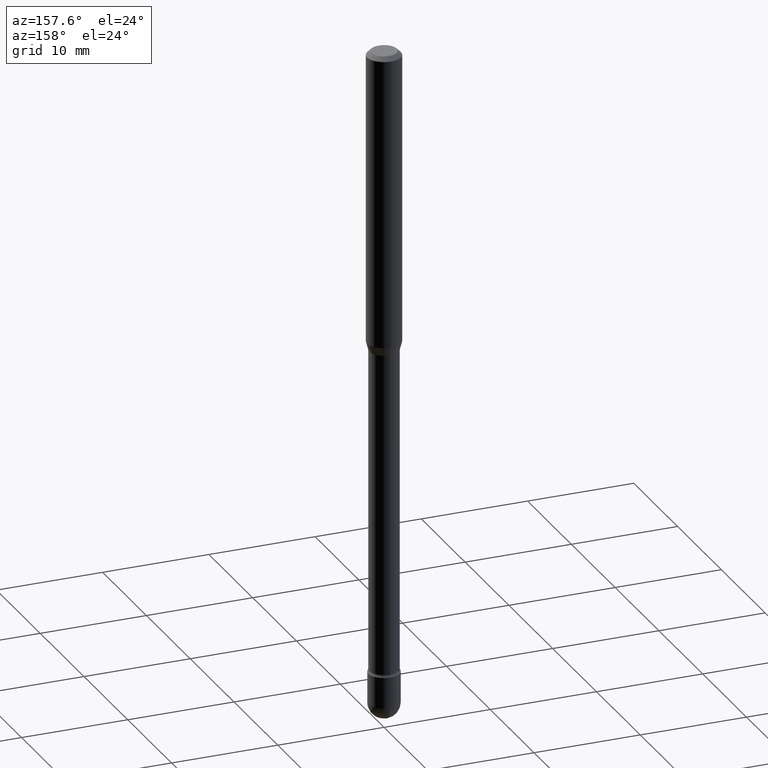
[diagram: clean part render]
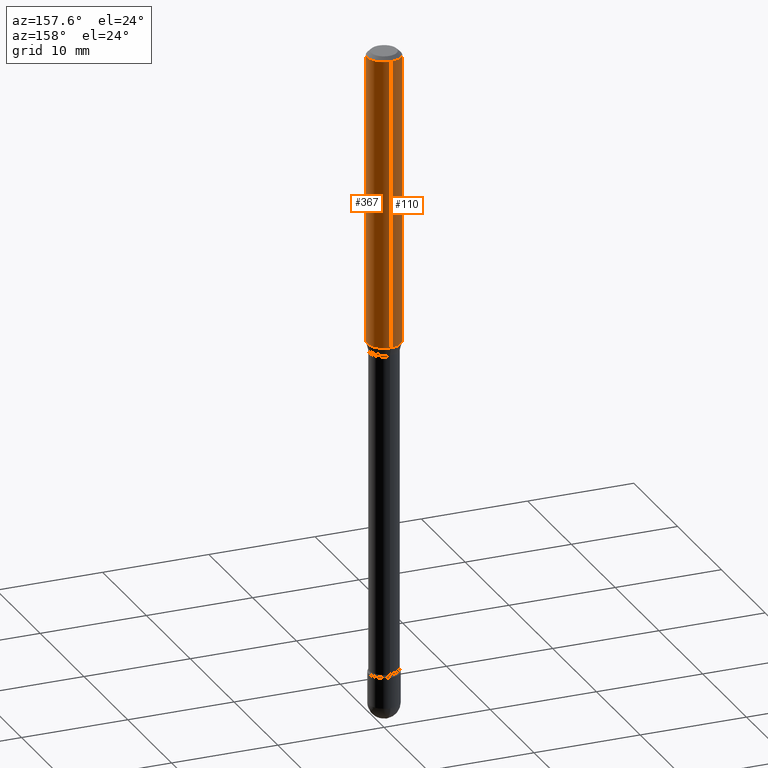
[diagram: same view with one multi-face feature highlighted, each face labeled with its STEP entity id]
A machine part, auxiliary view. The highlighted faces form ONE feature: a constant-radius fillet chain: 2 tangent blend faces with common blend radius 1.5875 mm. The faces share edges in the B-rep.
Their STEP definitions:
[1] entity #110 (Cylinder):
#9 = EDGE_CURVE ( 'NONE', #376, #514, #35, .T. ) ;
#16 = ORIENTED_EDGE ( 'NONE', *, *, #229, .T. ) ;
#27 = ORIENTED_EDGE ( 'NONE', *, *, #141, .F. ) ;
#35 = CIRCLE ( 'NONE', #103, 0.06250000000000000000 ) ;
#69 = CARTESIAN_POINT ( 'NONE',  ( -4.364351673553916201E-16, -0.06250000000000000000, 6.962883749662878485E-16 ) ) ;
#72 = VERTEX_POINT ( 'NONE', #219 ) ;
#85 = DIRECTION ( 'NONE',  ( -2.445497940252363543E-29, 3.491439617200668170E-15, 1.000000000000000000 ) ) ;
#96 = DIRECTION ( 'NONE',  ( -2.445497940252363824E-29, 3.491439617200667775E-15, 1.000000000000000000 ) ) ;
#103 = AXIS2_PLACEMENT_3D ( 'NONE', #107, #213, #196 ) ;
#107 = CARTESIAN_POINT ( 'NONE',  ( 3.668246910378565599E-31, -5.237159425801031048E-17, -0.01500000000000008271 ) ) ;
#110 = ADVANCED_FACE ( 'NONE', ( #355 ), #129, .T. ) ;
#119 = ORIENTED_EDGE ( 'NONE', *, *, #329, .T. ) ;
#129 = CYLINDRICAL_SURFACE ( 'NONE', #276, 0.06250000000000000000 ) ;
#138 = CARTESIAN_POINT ( 'NONE',  ( 2.661836887426760924E-29, -3.800306927401807110E-15, -1.088464170676043397 ) ) ;
#141 = EDGE_CURVE ( 'NONE', #72, #376, #306, .T. ) ;
#186 = DIRECTION ( 'NONE',  ( -2.445497940252363543E-29, 3.491439617200668170E-15, 1.000000000000000000 ) ) ;
#196 = DIRECTION ( 'NONE',  ( -6.982962677686265922E-15, -1.000000000000000000, 3.483106191921935554E-15 ) ) ;
#213 = DIRECTION ( 'NONE',  ( -2.445497940252363543E-29, 3.491439617200668170E-15, 1.000000000000000000 ) ) ;
#219 = CARTESIAN_POINT ( 'NONE',  ( 4.440892098500890430E-16, 0.06249999999999618361, -1.088464170676043619 ) ) ;
#222 = AXIS2_PLACEMENT_3D ( 'NONE', #138, #186, #322 ) ;
#229 = EDGE_CURVE ( 'NONE', #72, #243, #268, .T. ) ;
#243 = VERTEX_POINT ( 'NONE', #497 ) ;
#247 = DIRECTION ( 'NONE',  ( -2.445497940252363824E-29, 3.491439617200667775E-15, 1.000000000000000000 ) ) ;
#261 = CARTESIAN_POINT ( 'NONE',  ( -4.364351673553912750E-16, -0.06250000000000005551, -0.01499999999999986587 ) ) ;
#268 = CIRCLE ( 'NONE', #222, 0.06250000000000000000 ) ;
#276 = AXIS2_PLACEMENT_3D ( 'NONE', #480, #85, #359 ) ;
#306 = LINE ( 'NONE', #375, #483 ) ;
#322 = DIRECTION ( 'NONE',  ( -6.982962677686265922E-15, -1.000000000000000000, 4.370956789862821150E-15 ) ) ;
#329 = EDGE_CURVE ( 'NONE', #243, #514, #467, .T. ) ;
#355 = FACE_OUTER_BOUND ( 'NONE', #557, .T. ) ;
#359 = DIRECTION ( 'NONE',  ( -6.982962677686265922E-15, -1.000000000000000000, 3.491439617200668564E-15 ) ) ;
#375 = CARTESIAN_POINT ( 'NONE',  ( 4.440892098500625669E-16, 0.06250000000000000000, 2.598584228162043273E-16 ) ) ;
#376 = VERTEX_POINT ( 'NONE', #396 ) ;
#396 = CARTESIAN_POINT ( 'NONE',  ( 4.440892098500893388E-16, 0.06249999999999993755, -0.01500000000000030129 ) ) ;
#467 = LINE ( 'NONE', #69, #511 ) ;
#480 = CARTESIAN_POINT ( 'NONE',  ( -1.169113584055446105E-44, 1.669184350826100908E-30, 4.780733988912460139E-16 ) ) ;
#483 = VECTOR ( 'NONE', #96, 39.37007874015748143 ) ;
#497 = CARTESIAN_POINT ( 'NONE',  ( -4.364351673553650454E-16, -0.06250000000000381639, -1.088464170676042952 ) ) ;
#502 = ORIENTED_EDGE ( 'NONE', *, *, #9, .F. ) ;
#511 = VECTOR ( 'NONE', #247, 39.37007874015748143 ) ;
#514 = VERTEX_POINT ( 'NONE', #261 ) ;
#557 = EDGE_LOOP ( 'NONE', ( #27, #16, #119, #502 ) ) ;
[2] entity #367 (Cylinder):
#22 = ORIENTED_EDGE ( 'NONE', *, *, #141, .T. ) ;
#47 = AXIS2_PLACEMENT_3D ( 'NONE', #335, #513, #194 ) ;
#50 = CARTESIAN_POINT ( 'NONE',  ( 3.668246910378565599E-31, -5.237159425801031048E-17, -0.01500000000000008271 ) ) ;
#69 = CARTESIAN_POINT ( 'NONE',  ( -4.364351673553916201E-16, -0.06250000000000000000, 6.962883749662878485E-16 ) ) ;
#72 = VERTEX_POINT ( 'NONE', #219 ) ;
#96 = DIRECTION ( 'NONE',  ( -2.445497940252363824E-29, 3.491439617200667775E-15, 1.000000000000000000 ) ) ;
#98 = DIRECTION ( 'NONE',  ( -2.445497940252363543E-29, 3.491439617200668170E-15, 1.000000000000000000 ) ) ;
#141 = EDGE_CURVE ( 'NONE', #72, #376, #306, .T. ) ;
#146 = DIRECTION ( 'NONE',  ( -6.982962677686265922E-15, -1.000000000000000000, 4.370956789862821150E-15 ) ) ;
#148 = EDGE_CURVE ( 'NONE', #514, #376, #192, .T. ) ;
#150 = CYLINDRICAL_SURFACE ( 'NONE', #47, 0.06250000000000000000 ) ;
#192 = CIRCLE ( 'NONE', #337, 0.06250000000000000000 ) ;
#194 = DIRECTION ( 'NONE',  ( -6.982962677686265922E-15, -1.000000000000000000, 3.491439617200668564E-15 ) ) ;
#201 = FACE_OUTER_BOUND ( 'NONE', #237, .T. ) ;
#202 = ORIENTED_EDGE ( 'NONE', *, *, #148, .F. ) ;
#219 = CARTESIAN_POINT ( 'NONE',  ( 4.440892098500890430E-16, 0.06249999999999618361, -1.088464170676043619 ) ) ;
#237 = EDGE_LOOP ( 'NONE', ( #427, #22, #202, #299 ) ) ;
#243 = VERTEX_POINT ( 'NONE', #497 ) ;
#247 = DIRECTION ( 'NONE',  ( -2.445497940252363824E-29, 3.491439617200667775E-15, 1.000000000000000000 ) ) ;
#260 = AXIS2_PLACEMENT_3D ( 'NONE', #429, #519, #146 ) ;
#261 = CARTESIAN_POINT ( 'NONE',  ( -4.364351673553912750E-16, -0.06250000000000005551, -0.01499999999999986587 ) ) ;
#299 = ORIENTED_EDGE ( 'NONE', *, *, #329, .F. ) ;
#306 = LINE ( 'NONE', #375, #483 ) ;
#329 = EDGE_CURVE ( 'NONE', #243, #514, #467, .T. ) ;
#335 = CARTESIAN_POINT ( 'NONE',  ( -1.169113584055446105E-44, 1.669184350826100908E-30, 4.780733988912460139E-16 ) ) ;
#337 = AXIS2_PLACEMENT_3D ( 'NONE', #50, #98, #412 ) ;
#348 = EDGE_CURVE ( 'NONE', #243, #72, #565, .T. ) ;
#367 = ADVANCED_FACE ( 'NONE', ( #201 ), #150, .T. ) ;
#375 = CARTESIAN_POINT ( 'NONE',  ( 4.440892098500625669E-16, 0.06250000000000000000, 2.598584228162043273E-16 ) ) ;
#376 = VERTEX_POINT ( 'NONE', #396 ) ;
#396 = CARTESIAN_POINT ( 'NONE',  ( 4.440892098500893388E-16, 0.06249999999999993755, -0.01500000000000030129 ) ) ;
#412 = DIRECTION ( 'NONE',  ( -6.982962677686265922E-15, -1.000000000000000000, 3.483106191921935554E-15 ) ) ;
#427 = ORIENTED_EDGE ( 'NONE', *, *, #348, .T. ) ;
#429 = CARTESIAN_POINT ( 'NONE',  ( 2.661836887426760924E-29, -3.800306927401807110E-15, -1.088464170676043397 ) ) ;
#467 = LINE ( 'NONE', #69, #511 ) ;
#483 = VECTOR ( 'NONE', #96, 39.37007874015748143 ) ;
#497 = CARTESIAN_POINT ( 'NONE',  ( -4.364351673553650454E-16, -0.06250000000000381639, -1.088464170676042952 ) ) ;
#511 = VECTOR ( 'NONE', #247, 39.37007874015748143 ) ;
#513 = DIRECTION ( 'NONE',  ( -2.445497940252363543E-29, 3.491439617200668170E-15, 1.000000000000000000 ) ) ;
#514 = VERTEX_POINT ( 'NONE', #261 ) ;
#519 = DIRECTION ( 'NONE',  ( -2.445497940252363543E-29, 3.491439617200668170E-15, 1.000000000000000000 ) ) ;
#565 = CIRCLE ( 'NONE', #260, 0.06250000000000000000 ) ;